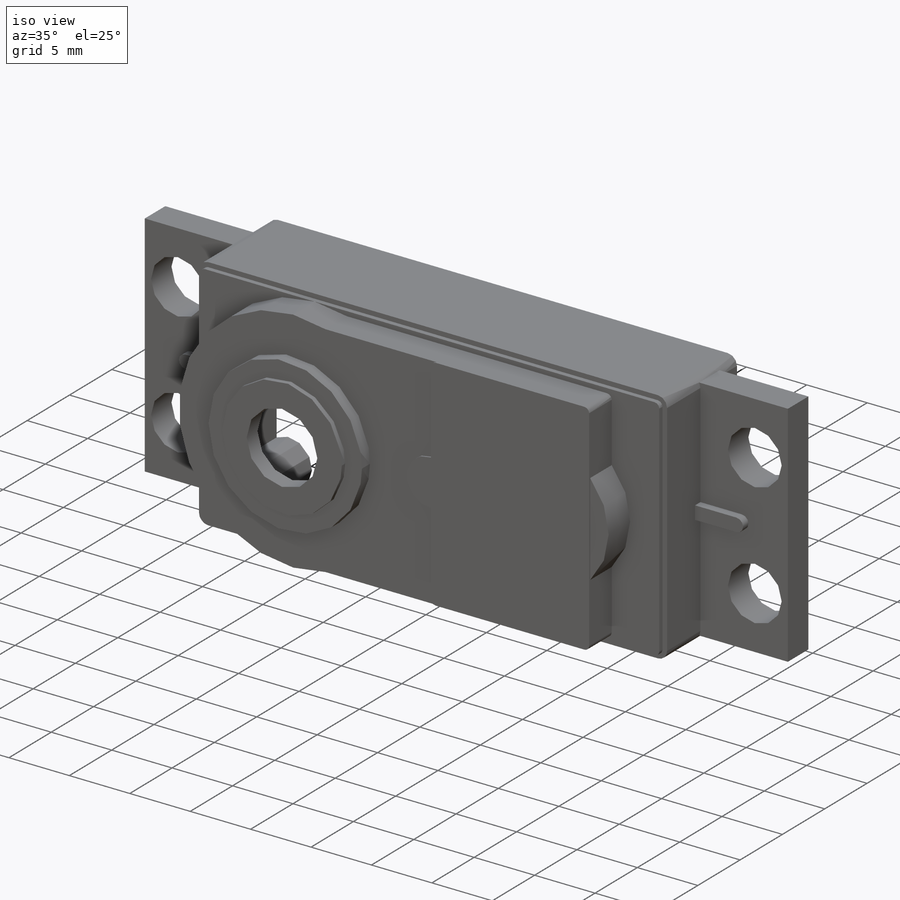
[diagram: iso view]
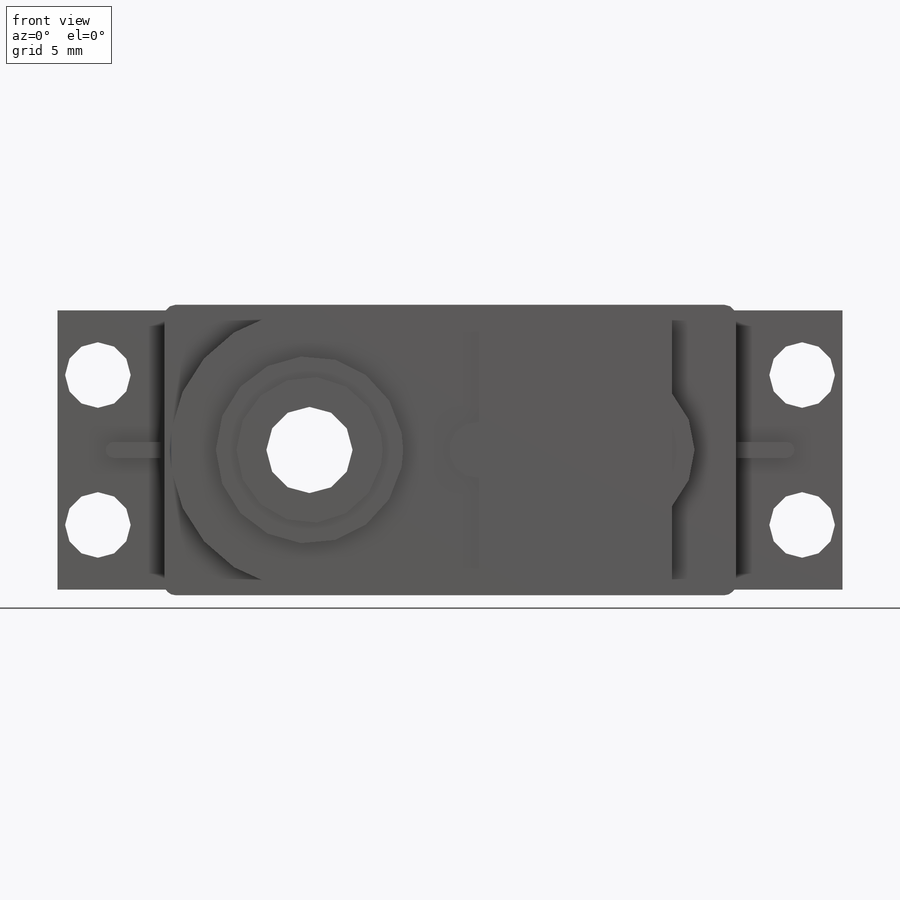
[diagram: front view]
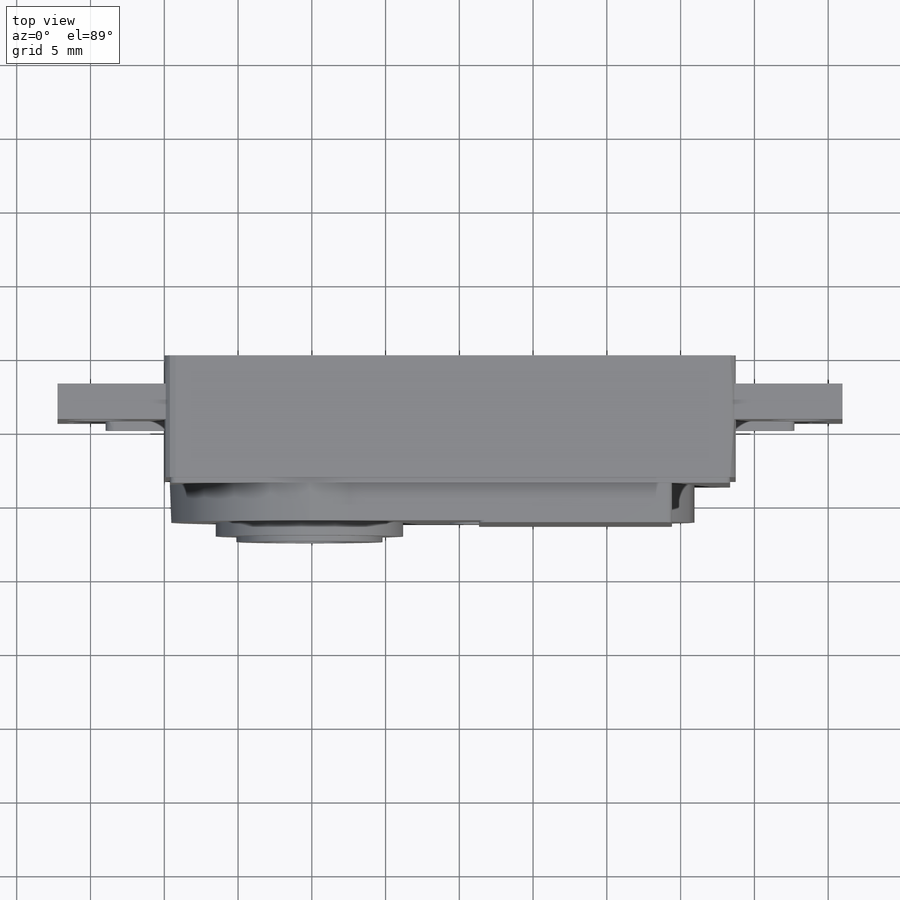
[diagram: top view]
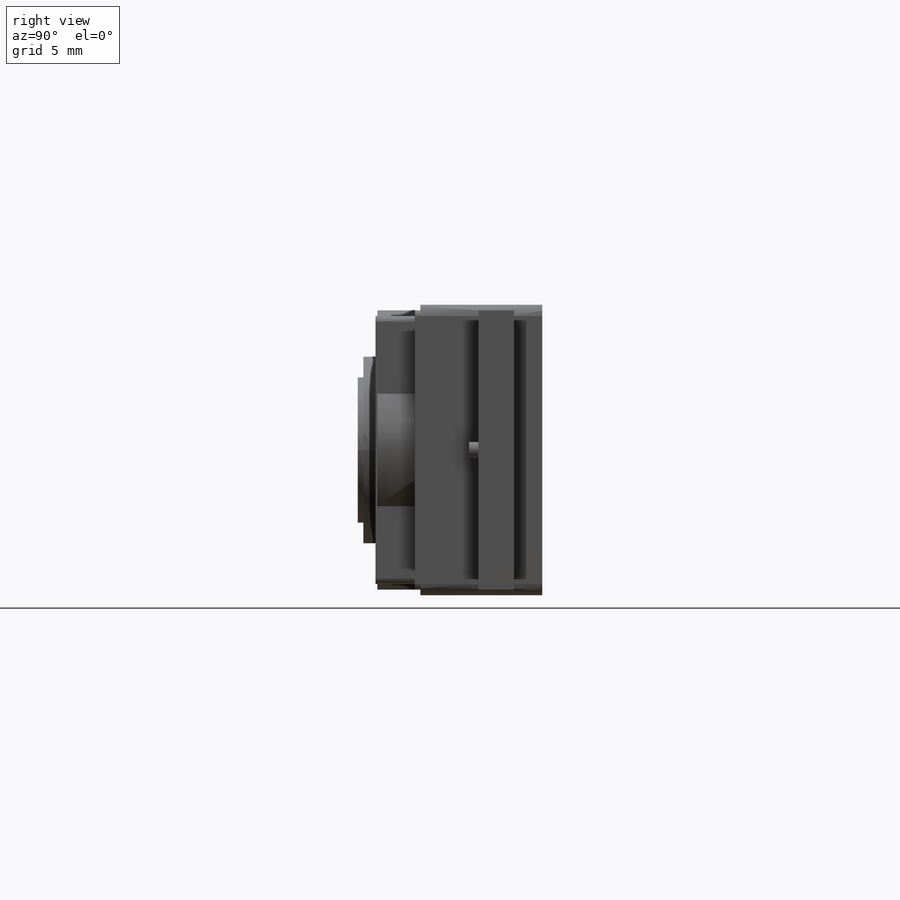
[diagram: right view]
SOLIDWORKS PART (.sldprt)
format: sldprt  version: not decoded by parser v0  size: 733,184 bytes
history: native  units: mm
features: sketch x22, extrude x13, cut_extrude x8, material x1, shell x1, plane x1, mirror x1 (+13 scaffold rows collapsed)
feature tree (60):
  scaffold x13  (default folders/planes/origin — collapsed)
  material  "ABS"
  sketch  "Sketch2"  dims[D3=0.762mm D1=38.735mm D2=19.685mm]
  extrude  "Extrude1"  Depth=8.255mm
  sketch  "Sketch4"  dims[D1=0.381mm]
  extrude  "Extrude2"  Depth=0.381mm
  sketch  "Sketch5"  dims[c1.D1=18.923mm c1.D5=0.381mm c1.D7=~5.845387mm c1.D4=5.5245mm c2.D1=37.211mm c2.D2=0.381mm c2.D3=0.381mm c2.D4=3.937mm c2.D6=7.62mm c2.D7=1.524mm c3.D4=20.574mm]
  extrude  "Extrude3"  Depth=2.54mm
  sketch  "Sketch7"  dims[D1=12.7mm]
  extrude  "Extrude4"  Depth=0.945mm
  sketch  "Sketch8"  dims[D1=9.906mm]
  extrude  "Extrude5"  Depth=0.381mm
  shell  "Shell1"  Thickness=1.27mm
  sketch  "Sketch9"  dims[D1=17.78mm]
  sketch  "Sketch28"  dims[D1=10.0mm]
  extrude  "Extrude14"  [1 undecoded]
  sketch  "Sketch10"  dims[D1=0.635mm]
  cut_extrude  "Cut-Extrude2"  Depth=0.889mm
  sketch  "Sketch12"  dims[c1.D5=3.81mm c1.D1=~2.08853mm c1.D2=2.54mm c1.D3=~2.160657mm c1.D4=~2.334903mm c2.D2=2.54mm]
  extrude  "Extrude6"  Depth=7.112mm
  cut_extrude  "Cut-Extrude3"  [1 undecoded]
  sketch  "Sketch13"  dims[D1=0.0mm]
  cut_extrude  "Cut-Extrude5"  Depth=0.381mm
  sketch  "Sketch14"  dims[D1=0.254mm]
  cut_extrude  "Cut-Extrude6"  Depth=6.35mm
  sketch  "Sketch16"  dims[c1.D1=~1.161848mm c1.D2=~1.971345mm c2.D1=2.413mm c2.D2=1.905mm]
  extrude  "Extrude7"  Depth=7.239mm
  sketch  "Sketch18"  dims[c1.D1=1.0922mm c1.D2=1.0922mm c2.D1=1.0922mm c2.D2=3.429mm]
  extrude  "Extrude8"  Depth=0.635mm
  sketch  "Sketch19"  dims[c1.D2=4.445mm c1.D4=4.445mm c1.D1=2.54mm c2.D2=4.699mm c2.D3=~4.446343mm c2.D4=~4.446343mm c2.Flange Hole Offset=4.318mm c3.D4=~3.102159mm c3.D3=10.16mm c4.D4=4.699mm c4.D1=4.5mm]
  cut_extrude  "Cut-Extrude7"  [1 undecoded]
  sketch  "Sketch21"
  plane  "Plane1"
  sketch  "Sketch22"  dims[c1.D2=16.51mm c1.D3=8.1915mm c1.D1=16.256mm c2.D3=33.782mm c2.D4=33.2994mm]
  extrude  "Extrude10"  Depth=2.54mm
  sketch  "Sketch23"
  cut_extrude  "Cut-Extrude10"  [1 undecoded]
  sketch  "Sketch24"  dims[D1=3.81mm]
  extrude  "Extrude11"  Depth=0.508mm
  sketch  "Sketch25"  dims[D1=1.5875mm]
  cut_extrude  "Cut-Extrude11"  Depth=0.762mm
  sketch  "Sketch26"  dims[D1=11.5316mm]
  extrude  "Extrude12"  Depth=0.0508mm
  sketch  "Sketch27"  dims[D3=0.381mm D2=12.7mm D1=0.0mm]
  extrude  "Extrude13"  Depth=0.127mm
  sketch  "Sketch29"  dims[D1=5.842mm]
  cut_extrude  "Cut-Extrude12"  [1 undecoded]
  mirror  "Mirror1"
decode coverage: 37 of 45 modeling features carry decoded parameters
note: ~ marks probable driven/reference dimensions
note: 5 parameter values undecoded
summary: no parameter record found for 5 features
note: suppression state not decoded; provenance and decode notes live in map.json
